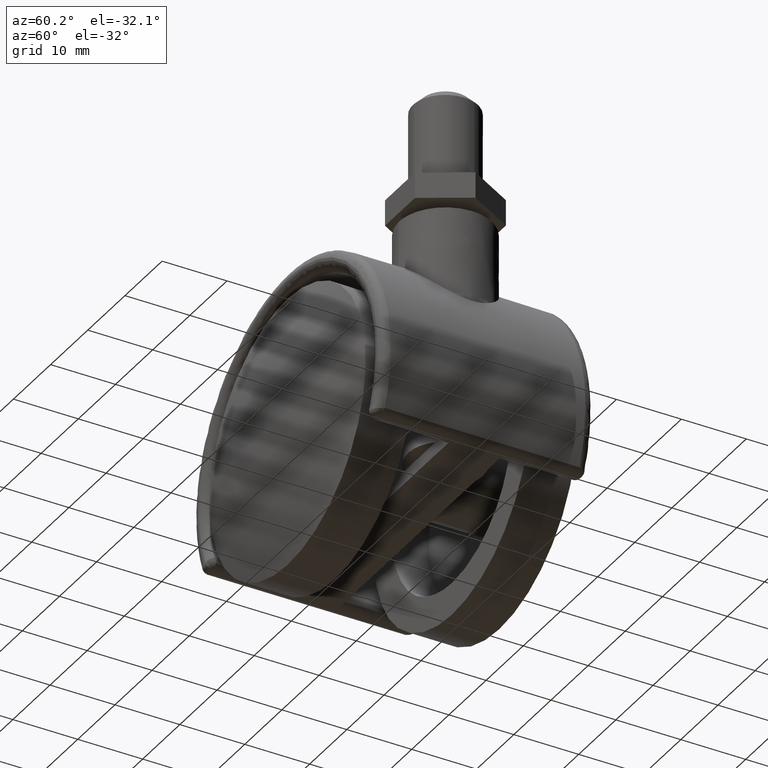
[diagram: clean part render]
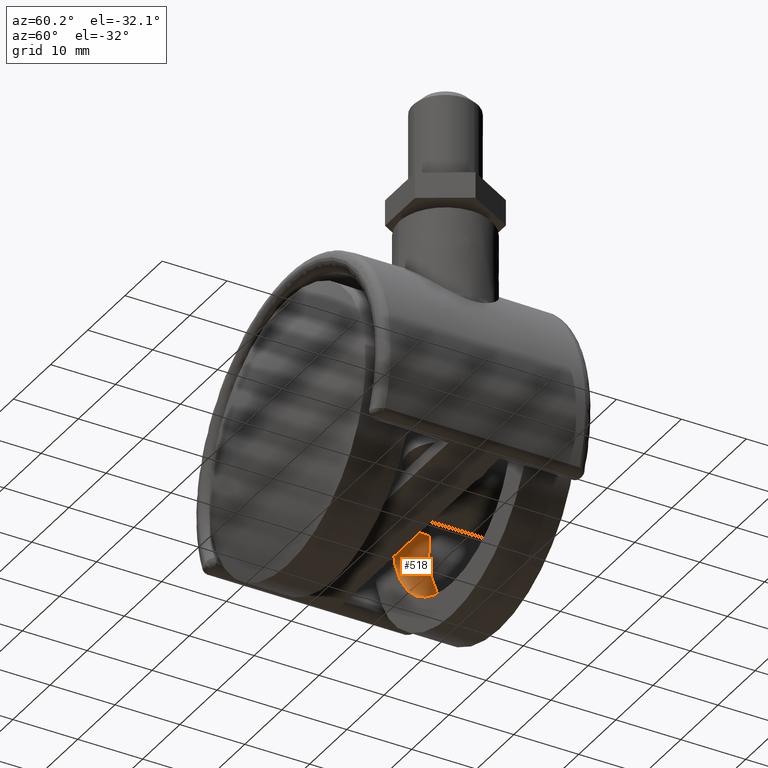
[diagram: same view with one face highlighted and labeled with its STEP entity id]
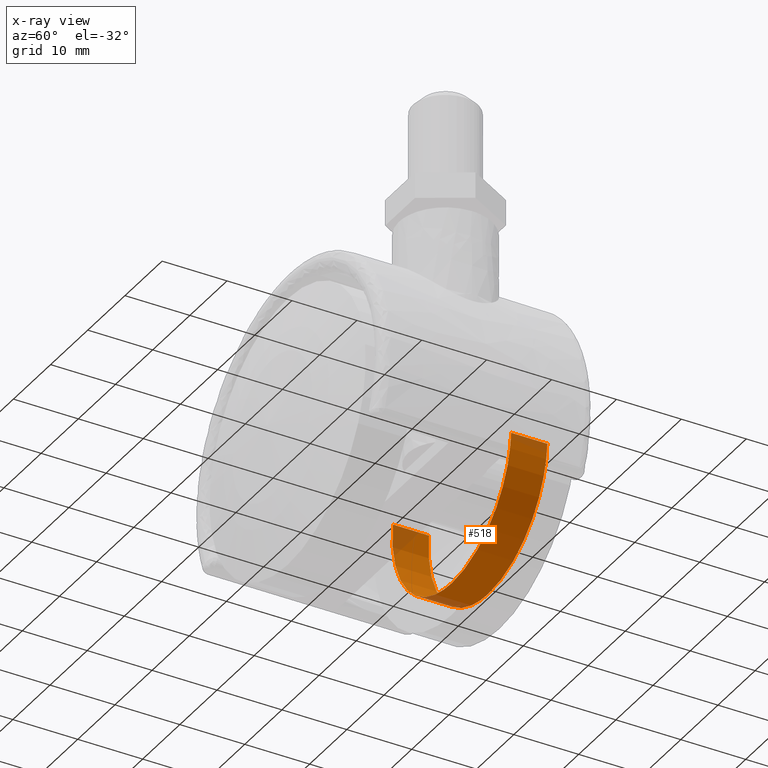
[diagram: x-ray of the same camera — body ghosted, the highlighted face saturated]
A machine part, auxiliary view. The second image highlights one B-rep face of the part: STEP entity #518.
The next image is the same camera in x-ray: the body ghosted, the highlighted face saturated — about 8% of this face is hidden behind the body in this view.
In plain terms, the highlighted face is a freeform B-spline surface patch.
Its self-contained STEP definition (entity closure, byte-faithful):
#416=CARTESIAN_POINT('',(15.888152421818658,-14.715886645540145,1.888547754508135));
#417=CARTESIAN_POINT('',(15.942201847177685,-14.715886645540136,1.433835658207643));
#418=CARTESIAN_POINT('',(15.970156774749871,-14.715886645540140,0.976776632557712));
#419=CARTESIAN_POINT('',(16.946933407307572,-14.715886645540140,-14.993380142192160));
#420=CARTESIAN_POINT('',(0.976776632557712,-14.715886645540140,-15.970156774749871));
#421=CARTESIAN_POINT('',(-14.993380142192160,-14.715886645540140,-16.946933407307572));
#422=CARTESIAN_POINT('',(-15.970156774749871,-14.715886645540140,-0.976776632557712));
#423=CARTESIAN_POINT('',(15.888152421818658,-8.857102833861495,1.888547754508135));
#424=CARTESIAN_POINT('',(15.942201847177685,-8.857102833861495,1.433835658207643));
#425=CARTESIAN_POINT('',(15.970156774749871,-8.857102833861495,0.976776632557712));
#426=CARTESIAN_POINT('',(16.946933407307572,-8.857102833861495,-14.993380142192160));
#427=CARTESIAN_POINT('',(0.976776632557712,-8.857102833861495,-15.970156774749871));
#428=CARTESIAN_POINT('',(-14.993380142192160,-8.857102833861495,-16.946933407307572));
#429=CARTESIAN_POINT('',(-15.970156774749871,-8.857102833861495,-0.976776632557712));
#437=(BOUNDED_SURFACE()B_SPLINE_SURFACE(2,1,((#416,#423),(#417,#424),(#418,#425),(#419,#426),(#420,#427),(#421,#428),(#422,#429)),.UNSPECIFIED.,.F.,.F.,.U.)B_SPLINE_SURFACE_WITH_KNOTS((3,2,2,3),(2,2),(0.0,1.060386719675124,27.570054711553190,54.079722703431273),(0.0,5.858783811678648),.UNSPECIFIED.)GEOMETRIC_REPRESENTATION_ITEM()RATIONAL_B_SPLINE_SURFACE(((0.977505800795127,0.977505800795127),(0.988284271247462,0.988284271247462),(1.0,1.0),(0.707106781186548,0.707106781186548),(1.0,1.0),(0.707106781186548,0.707106781186548),(1.0,1.0)))REPRESENTATION_ITEM('')SURFACE());
#438=CARTESIAN_POINT('',(15.888154676352340,-14.576474776136470,1.888528787161693));
#439=VERTEX_POINT('',#438);
#440=CARTESIAN_POINT('',(0.0,-14.576474776136720,-16.0));
#441=VERTEX_POINT('',#440);
#442=CARTESIAN_POINT('',(15.888154676352345,-14.576474776136466,1.888528787161693));
#443=CARTESIAN_POINT('',(15.999999999999998,-14.576474776136719,0.947576330498856));
#444=CARTESIAN_POINT('',(16.0,-14.576474776136720,0.0));
#445=CARTESIAN_POINT('',(15.999999999999998,-14.576474776136724,-15.999999999999998));
#446=CARTESIAN_POINT('',(0.0,-14.576474776136720,-16.0));
#454=(BOUNDED_CURVE()B_SPLINE_CURVE(2,(#442,#443,#444,#445,#446),.UNSPECIFIED.,.F.,.U.)B_SPLINE_CURVE_WITH_KNOTS((3,2,3),(0.229562675272483,0.250000000000000,0.500000000000000),.UNSPECIFIED.)CURVE()GEOMETRIC_REPRESENTATION_ITEM()RATIONAL_B_SPLINE_CURVE((0.956027149639928,0.976056184706487,1.0,0.707106781186548,1.0))REPRESENTATION_ITEM(''));
#455=EDGE_CURVE('',#439,#441,#454,.T.);
#456=ORIENTED_EDGE('',*,*,#455,.F.);
#457=CARTESIAN_POINT('',(15.888154649202500,-9.0,1.888529015575062));
#458=VERTEX_POINT('',#457);
#459=CARTESIAN_POINT('',(15.888154676352340,-14.576474776136470,1.888528787161693));
#460=CARTESIAN_POINT('',(15.888154649202500,-9.0,1.888529015575062));
#461=QUASI_UNIFORM_CURVE('',1,(#459,#460),.UNSPECIFIED.,.F.,.U.);
#462=EDGE_CURVE('',#439,#458,#461,.T.);
#463=ORIENTED_EDGE('',*,*,#462,.T.);
#464=CARTESIAN_POINT('',(0.0,-9.0,-16.0));
#465=VERTEX_POINT('',#464);
#466=CARTESIAN_POINT('',(15.888154649202493,-9.0,1.888529015575062));
#467=CARTESIAN_POINT('',(16.0,-9.0,0.947576445912879));
#468=CARTESIAN_POINT('',(16.0,-9.0,0.0));
#469=CARTESIAN_POINT('',(15.999999999999998,-9.000000000000002,-15.999999999999998));
#470=CARTESIAN_POINT('',(0.0,-9.0,-16.0));
#478=(BOUNDED_CURVE()B_SPLINE_CURVE(2,(#466,#467,#468,#469,#470),.UNSPECIFIED.,.F.,.U.)B_SPLINE_CURVE_WITH_KNOTS((3,2,3),(0.229562672842836,0.250000000000000,0.500000000000000),.UNSPECIFIED.)CURVE()GEOMETRIC_REPRESENTATION_ITEM()RATIONAL_B_SPLINE_CURVE((0.956027144877710,0.976056181859978,1.0,0.707106781186548,1.0))REPRESENTATION_ITEM(''));
#479=EDGE_CURVE('',#458,#465,#478,.T.);
#480=ORIENTED_EDGE('',*,*,#479,.T.);
#481=CARTESIAN_POINT('',(-15.970156774645320,-9.0,-0.976776634267073));
#482=VERTEX_POINT('',#481);
#483=CARTESIAN_POINT('',(0.0,-9.0,-16.0));
#484=CARTESIAN_POINT('',(-15.051297067263157,-9.0,-16.000000000000007));
#485=CARTESIAN_POINT('',(-15.970156774645325,-9.0,-0.976776634267073));
#493=(BOUNDED_CURVE()B_SPLINE_CURVE(2,(#483,#484,#485),.UNSPECIFIED.,.F.,.U.)B_SPLINE_CURVE_WITH_KNOTS((3,3),(0.500000000000000,0.739332962205032),.UNSPECIFIED.)CURVE()GEOMETRIC_REPRESENTATION_ITEM()RATIONAL_B_SPLINE_CURVE((1.0,0.719603993326439,0.976072041594041))REPRESENTATION_ITEM(''));
#494=EDGE_CURVE('',#465,#482,#493,.T.);
#495=ORIENTED_EDGE('',*,*,#494,.T.);
#496=CARTESIAN_POINT('',(-15.970156774645320,-14.576474776136720,-0.976776634267073));
#497=VERTEX_POINT('',#496);
#498=CARTESIAN_POINT('',(-15.970156774645320,-14.576474776136720,-0.976776634267073));
#499=CARTESIAN_POINT('',(-15.970156774645320,-9.0,-0.976776634267073));
#500=QUASI_UNIFORM_CURVE('',1,(#498,#499),.UNSPECIFIED.,.F.,.U.);
#501=EDGE_CURVE('',#497,#482,#500,.T.);
#502=ORIENTED_EDGE('',*,*,#501,.F.);
#503=CARTESIAN_POINT('',(0.0,-14.576474776136720,-16.0));
#504=CARTESIAN_POINT('',(-15.051297067263157,-14.576474776136726,-16.000000000000007));
#505=CARTESIAN_POINT('',(-15.970156774645325,-14.576474776136726,-0.976776634267073));
#513=(BOUNDED_CURVE()B_SPLINE_CURVE(2,(#503,#504,#505),.UNSPECIFIED.,.F.,.U.)B_SPLINE_CURVE_WITH_KNOTS((3,3),(0.500000000000000,0.739332962205032),.UNSPECIFIED.)CURVE()GEOMETRIC_REPRESENTATION_ITEM()RATIONAL_B_SPLINE_CURVE((1.0,0.719603993326439,0.976072041594041))REPRESENTATION_ITEM(''));
#514=EDGE_CURVE('',#441,#497,#513,.T.);
#515=ORIENTED_EDGE('',*,*,#514,.F.);
#516=EDGE_LOOP('',(#456,#463,#480,#495,#502,#515));
#517=FACE_OUTER_BOUND('',#516,.T.);
#518=ADVANCED_FACE('',(#517),#437,.F.);